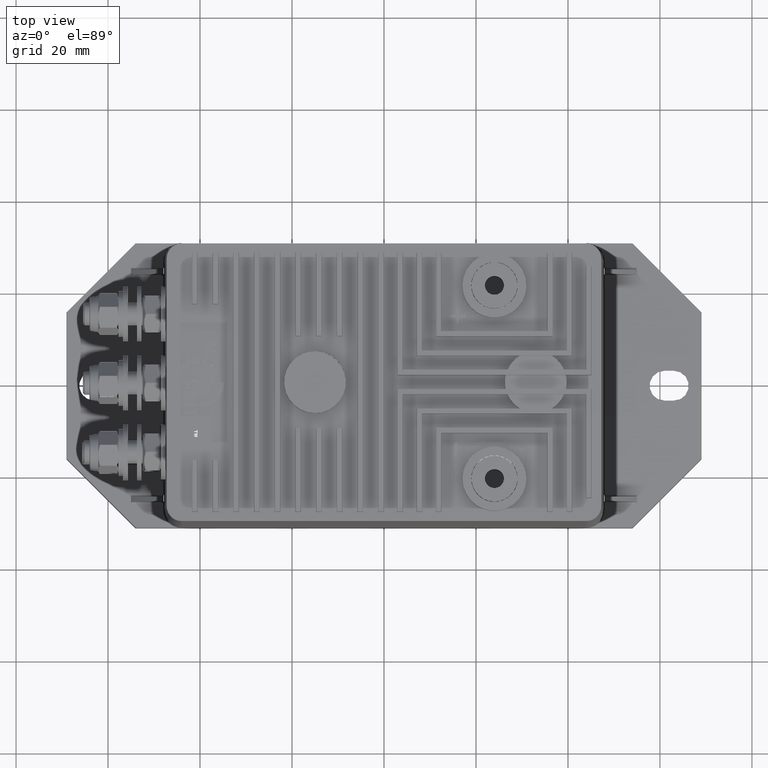
[diagram: clean part render]
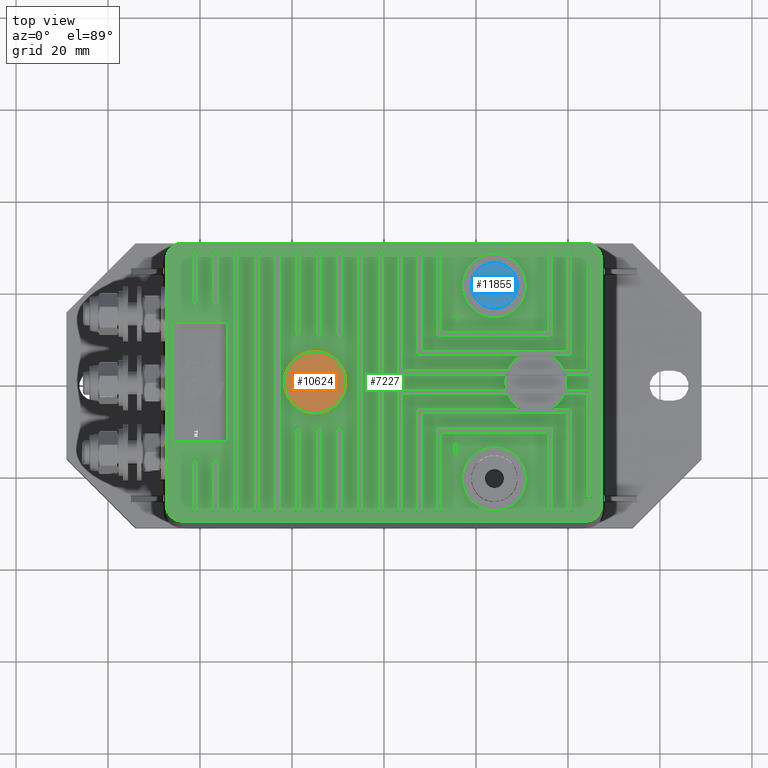
[diagram: same view with three faces highlighted in distinct colors, each labeled with its STEP entity id]
A machine part, top view with three faces highlighted in distinct colors.
Their STEP definitions:

[orange] entity #10624 — the highlighted planar face has unit normal (0, 0, -1).
#2947=CARTESIAN_POINT('',(-19.231977143158463,5.224948796246077,48.000000000000007));
#2948=VERTEX_POINT('',#2947);
#2949=CARTESIAN_POINT('',(-15.0,-7.775031E-014,48.000000000000007));
#2950=DIRECTION('',(0.0,0.0,-1.0));
#2951=DIRECTION('',(-1.0,0.0,0.0));
#2952=AXIS2_PLACEMENT_3D('',#2949,#2950,#2951);
#2953=CIRCLE('',#2952,6.723817402607674);
#2954=EDGE_CURVE('',#2948,#2948,#2953,.T.);
#10616=CARTESIAN_POINT('',(-15.0,-7.775031E-014,48.000000000000007));
#10617=DIRECTION('',(0.0,0.0,-1.0));
#10618=DIRECTION('',(-1.0,0.0,0.0));
#10619=AXIS2_PLACEMENT_3D('',#10616,#10617,#10618);
#10620=PLANE('',#10619);
#10621=ORIENTED_EDGE('',*,*,#2954,.F.);
#10622=EDGE_LOOP('',(#10621));
#10623=FACE_OUTER_BOUND('',#10622,.T.);
#10624=ADVANCED_FACE('',(#10623),#10620,.F.);

[blue] entity #11855 — the highlighted planar face has unit normal (0, 0, 1).
#11763=CARTESIAN_POINT('',(24.000000000000107,16.000000000000529,49.008727532463567));
#11764=VERTEX_POINT('',#11763);
#11765=CARTESIAN_POINT('',(24.000000000000078,21.000000000000529,49.008727532463567));
#11766=DIRECTION('',(0.0,0.0,1.0));
#11767=DIRECTION('',(0.0,-1.0,0.0));
#11768=AXIS2_PLACEMENT_3D('',#11765,#11766,#11767);
#11769=CIRCLE('',#11768,5.0);
#11770=EDGE_CURVE('',#11764,#11764,#11769,.T.);
#11832=CARTESIAN_POINT('',(26.067000000000078,21.00000000000054,49.008727532463553));
#11833=VERTEX_POINT('',#11832);
#11834=CARTESIAN_POINT('',(24.000000000000078,21.000000000000529,49.008727532463567));
#11835=DIRECTION('',(0.0,0.0,-1.0));
#11836=DIRECTION('',(1.0,0.0,0.0));
#11837=AXIS2_PLACEMENT_3D('',#11834,#11835,#11836);
#11838=CIRCLE('',#11837,2.067);
#11839=EDGE_CURVE('',#11833,#11833,#11838,.T.);
#11844=CARTESIAN_POINT('',(24.000000000000092,18.500000000000529,49.008727532463567));
#11845=DIRECTION('',(0.0,0.0,1.0));
#11846=DIRECTION('',(0.0,-1.0,0.0));
#11847=AXIS2_PLACEMENT_3D('',#11844,#11845,#11846);
#11848=PLANE('',#11847);
#11849=ORIENTED_EDGE('',*,*,#11770,.T.);
#11850=EDGE_LOOP('',(#11849));
#11851=FACE_OUTER_BOUND('',#11850,.T.);
#11852=ORIENTED_EDGE('',*,*,#11839,.T.);
#11853=EDGE_LOOP('',(#11852));
#11854=FACE_BOUND('',#11853,.T.);
#11855=ADVANCED_FACE('',(#11851,#11854),#11848,.T.);

[green] entity #7227 — the highlighted planar face has unit normal (0, 0, 1).
#2936=CARTESIAN_POINT('',(-8.25,-4.193606E-014,46.5));
#2937=VERTEX_POINT('',#2936);
#2938=CARTESIAN_POINT('',(-15.0,-7.775031E-014,46.5));
#2939=DIRECTION('',(0.0,0.0,-1.0));
#2940=DIRECTION('',(-1.0,0.0,0.0));
#2941=AXIS2_PLACEMENT_3D('',#2938,#2939,#2940);
#2942=CIRCLE('',#2941,6.75);
#2943=EDGE_CURVE('',#2937,#2937,#2942,.T.);
#2964=CARTESIAN_POINT('',(-13.558159740550707,-10.000000000000069,46.5));
#2965=VERTEX_POINT('',#2964);
#2974=CARTESIAN_POINT('',(-14.758159740550704,-10.000000000000075,46.5));
#2975=VERTEX_POINT('',#2974);
#2976=CARTESIAN_POINT('',(-13.558159740550705,-10.000000000000069,46.5));
#2977=DIRECTION('',(-1.0,0.0,0.0));
#2978=VECTOR('',#2977,1.199999999999999);
#2979=LINE('',#2976,#2978);
#2980=EDGE_CURVE('',#2965,#2975,#2979,.T.);
#3004=CARTESIAN_POINT('',(-18.058159740550707,-10.000000000000092,46.5));
#3005=VERTEX_POINT('',#3004);
#3014=CARTESIAN_POINT('',(-19.258159740550706,-10.000000000000098,46.5));
#3015=VERTEX_POINT('',#3014);
#3016=CARTESIAN_POINT('',(-18.058159740550707,-10.000000000000092,46.5));
#3017=DIRECTION('',(-1.0,0.0,0.0));
#3018=VECTOR('',#3017,1.199999999999999);
#3019=LINE('',#3016,#3018);
#3020=EDGE_CURVE('',#3005,#3015,#3019,.T.);
#3044=CARTESIAN_POINT('',(-9.058159740550707,-10.000000000000046,46.5));
#3045=VERTEX_POINT('',#3044);
#3054=CARTESIAN_POINT('',(-10.258159740550708,-10.000000000000053,46.5));
#3055=VERTEX_POINT('',#3054);
#3056=CARTESIAN_POINT('',(-9.058159740550709,-10.000000000000046,46.5));
#3057=DIRECTION('',(-1.0,0.0,0.0));
#3058=VECTOR('',#3057,1.199999999999998);
#3059=LINE('',#3056,#3058);
#3060=EDGE_CURVE('',#3045,#3055,#3059,.T.);
#3086=CARTESIAN_POINT('',(-18.05815974055081,9.999999999999906,46.5));
#3087=VERTEX_POINT('',#3086);
#3102=CARTESIAN_POINT('',(-19.258159740550813,9.999999999999897,46.5));
#3103=VERTEX_POINT('',#3102);
#3110=CARTESIAN_POINT('',(-19.258159740550813,9.999999999999899,46.5));
#3111=DIRECTION('',(1.0,0.0,0.0));
#3112=VECTOR('',#3111,1.200000000000003);
#3113=LINE('',#3110,#3112);
#3114=EDGE_CURVE('',#3103,#3087,#3113,.T.);
#3126=CARTESIAN_POINT('',(-13.558159740550808,9.999999999999929,46.5));
#3127=VERTEX_POINT('',#3126);
#3142=CARTESIAN_POINT('',(-14.758159740550811,9.999999999999922,46.5));
#3143=VERTEX_POINT('',#3142);
#3150=CARTESIAN_POINT('',(-14.758159740550813,9.999999999999922,46.5));
#3151=DIRECTION('',(1.0,0.0,0.0));
#3152=VECTOR('',#3151,1.200000000000005);
#3153=LINE('',#3150,#3152);
#3154=EDGE_CURVE('',#3143,#3127,#3153,.T.);
#3166=CARTESIAN_POINT('',(-9.058159740550812,9.999999999999954,46.5));
#3167=VERTEX_POINT('',#3166);
#3182=CARTESIAN_POINT('',(-10.258159740550814,9.999999999999947,46.5));
#3183=VERTEX_POINT('',#3182);
#3190=CARTESIAN_POINT('',(-10.258159740550814,9.999999999999947,46.5));
#3191=DIRECTION('',(1.0,0.0,0.0));
#3192=VECTOR('',#3191,1.200000000000003);
#3193=LINE('',#3190,#3192);
#3194=EDGE_CURVE('',#3183,#3167,#3193,.T.);
#3205=CARTESIAN_POINT('',(-9.058159740550906,28.188339480837815,46.5));
#3206=VERTEX_POINT('',#3205);
#3207=CARTESIAN_POINT('',(-9.058159740550908,28.188339480837815,46.5));
#3208=DIRECTION('',(0.0,-1.0,0.0));
#3209=VECTOR('',#3208,18.188339480837861);
#3210=LINE('',#3207,#3209);
#3211=EDGE_CURVE('',#3206,#3167,#3210,.T.);
#3292=CARTESIAN_POINT('',(-10.258159740550916,28.188339480837811,46.5));
#3293=VERTEX_POINT('',#3292);
#3300=CARTESIAN_POINT('',(-10.258159740550814,9.999999999999947,46.5));
#3301=DIRECTION('',(0.0,1.0,0.0));
#3302=VECTOR('',#3301,18.188339480837872);
#3303=LINE('',#3300,#3302);
#3304=EDGE_CURVE('',#3183,#3293,#3303,.T.);
#3315=CARTESIAN_POINT('',(-10.258159740550605,-28.188339480837911,46.5));
#3316=VERTEX_POINT('',#3315);
#3317=CARTESIAN_POINT('',(-10.258159740550603,-28.188339480837911,46.5));
#3318=DIRECTION('',(0.0,1.0,0.0));
#3319=VECTOR('',#3318,18.188339480837858);
#3320=LINE('',#3317,#3319);
#3321=EDGE_CURVE('',#3316,#3055,#3320,.T.);
#3339=CARTESIAN_POINT('',(-13.558159740550904,28.18833948083779,46.5));
#3340=VERTEX_POINT('',#3339);
#3341=CARTESIAN_POINT('',(-13.558159740550904,28.18833948083779,46.5));
#3342=DIRECTION('',(0.0,-1.0,0.0));
#3343=VECTOR('',#3342,18.188339480837861);
#3344=LINE('',#3341,#3343);
#3345=EDGE_CURVE('',#3340,#3127,#3344,.T.);
#3378=CARTESIAN_POINT('',(-13.558159740550611,-28.188339480837929,46.5));
#3379=VERTEX_POINT('',#3378);
#3386=CARTESIAN_POINT('',(-13.558159740550707,-10.000000000000071,46.5));
#3387=DIRECTION('',(0.0,-1.0,0.0));
#3388=VECTOR('',#3387,18.188339480837858);
#3389=LINE('',#3386,#3388);
#3390=EDGE_CURVE('',#2965,#3379,#3389,.T.);
#3450=CARTESIAN_POINT('',(-14.758159740550914,28.188339480837787,46.5));
#3451=VERTEX_POINT('',#3450);
#3458=CARTESIAN_POINT('',(-14.758159740550814,9.999999999999924,46.5));
#3459=DIRECTION('',(0.0,1.0,0.0));
#3460=VECTOR('',#3459,18.188339480837875);
#3461=LINE('',#3458,#3460);
#3462=EDGE_CURVE('',#3143,#3451,#3461,.T.);
#3473=CARTESIAN_POINT('',(-14.758159740550603,-28.188339480837932,46.5));
#3474=VERTEX_POINT('',#3473);
#3475=CARTESIAN_POINT('',(-14.758159740550603,-28.188339480837932,46.5));
#3476=DIRECTION('',(0.0,1.0,0.0));
#3477=VECTOR('',#3476,18.188339480837858);
#3478=LINE('',#3475,#3477);
#3479=EDGE_CURVE('',#3474,#2975,#3478,.T.);
#3497=CARTESIAN_POINT('',(-18.058159740550906,28.188339480837769,46.5));
#3498=VERTEX_POINT('',#3497);
#3499=CARTESIAN_POINT('',(-18.058159740550906,28.188339480837769,46.5));
#3500=DIRECTION('',(0.0,-1.0,0.0));
#3501=VECTOR('',#3500,18.188339480837861);
#3502=LINE('',#3499,#3501);
#3503=EDGE_CURVE('',#3498,#3087,#3502,.T.);
#3536=CARTESIAN_POINT('',(-18.058159740550611,-28.188339480837953,46.5));
#3537=VERTEX_POINT('',#3536);
#3544=CARTESIAN_POINT('',(-18.058159740550707,-10.000000000000092,46.5));
#3545=DIRECTION('',(0.0,-1.0,0.0));
#3546=VECTOR('',#3545,18.188339480837858);
#3547=LINE('',#3544,#3546);
#3548=EDGE_CURVE('',#3005,#3537,#3547,.T.);
#3608=CARTESIAN_POINT('',(-19.258159740550916,28.188339480837765,46.5));
#3609=VERTEX_POINT('',#3608);
#3616=CARTESIAN_POINT('',(-19.258159740550813,9.999999999999895,46.5));
#3617=DIRECTION('',(0.0,1.0,0.0));
#3618=VECTOR('',#3617,18.188339480837875);
#3619=LINE('',#3616,#3618);
#3620=EDGE_CURVE('',#3103,#3609,#3619,.T.);
#3631=CARTESIAN_POINT('',(-19.258159740550603,-28.188339480837957,46.5));
#3632=VERTEX_POINT('',#3631);
#3633=CARTESIAN_POINT('',(-19.258159740550603,-28.188339480837961,46.5));
#3634=DIRECTION('',(0.0,1.0,0.0));
#3635=VECTOR('',#3634,18.188339480837861);
#3636=LINE('',#3633,#3635);
#3637=EDGE_CURVE('',#3632,#3015,#3636,.T.);
#3656=CARTESIAN_POINT('',(-36.058159740550842,16.956362337679273,46.5));
#3657=VERTEX_POINT('',#3656);
#3672=CARTESIAN_POINT('',(-37.258159740550852,16.956362337679266,46.5));
#3673=VERTEX_POINT('',#3672);
#3680=CARTESIAN_POINT('',(-37.258159740550852,16.95636233767927,46.5));
#3681=DIRECTION('',(1.0,0.0,0.0));
#3682=VECTOR('',#3681,1.20000000000001);
#3683=LINE('',#3680,#3682);
#3684=EDGE_CURVE('',#3673,#3657,#3683,.T.);
#3694=CARTESIAN_POINT('',(-41.758159740550845,16.956362337679245,46.5));
#3695=VERTEX_POINT('',#3694);
#3704=CARTESIAN_POINT('',(-40.558159740550849,16.956362337679248,46.5));
#3705=VERTEX_POINT('',#3704);
#3706=CARTESIAN_POINT('',(-41.758159740550845,16.956362337679245,46.5));
#3707=DIRECTION('',(1.0,0.0,0.0));
#3708=VECTOR('',#3707,1.199999999999996);
#3709=LINE('',#3706,#3708);
#3710=EDGE_CURVE('',#3695,#3705,#3709,.T.);
#3734=CARTESIAN_POINT('',(-36.058159740550664,-16.956362337679646,46.5));
#3735=VERTEX_POINT('',#3734);
#3744=CARTESIAN_POINT('',(-37.25815974055066,-16.95636233767965,46.5));
#3745=VERTEX_POINT('',#3744);
#3746=CARTESIAN_POINT('',(-36.058159740550664,-16.956362337679646,46.5));
#3747=DIRECTION('',(-1.0,0.0,0.0));
#3748=VECTOR('',#3747,1.199999999999996);
#3749=LINE('',#3746,#3748);
#3750=EDGE_CURVE('',#3735,#3745,#3749,.T.);
#3776=CARTESIAN_POINT('',(-41.75815974055066,-16.956362337679675,46.5));
#3777=VERTEX_POINT('',#3776);
#3792=CARTESIAN_POINT('',(-40.558159740550664,-16.956362337679671,46.5));
#3793=VERTEX_POINT('',#3792);
#3800=CARTESIAN_POINT('',(-40.558159740550664,-16.956362337679671,46.5));
#3801=DIRECTION('',(-1.0,0.0,0.0));
#3802=VECTOR('',#3801,1.199999999999996);
#3803=LINE('',#3800,#3802);
#3804=EDGE_CURVE('',#3793,#3777,#3803,.T.);
#3815=CARTESIAN_POINT('',(-41.75815974055061,-28.188339480838071,46.5));
#3816=VERTEX_POINT('',#3815);
#3817=CARTESIAN_POINT('',(-41.758159740550603,-28.188339480838067,46.5));
#3818=DIRECTION('',(0.0,1.0,0.0));
#3819=VECTOR('',#3818,11.231977143158392);
#3820=LINE('',#3817,#3819);
#3821=EDGE_CURVE('',#3816,#3777,#3820,.T.);
#3854=CARTESIAN_POINT('',(-41.758159740550909,28.188339480837648,46.5));
#3855=VERTEX_POINT('',#3854);
#3862=CARTESIAN_POINT('',(-41.758159740550852,16.956362337679245,46.5));
#3863=DIRECTION('',(0.0,1.0,0.0));
#3864=VECTOR('',#3863,11.23197714315841);
#3865=LINE('',#3862,#3864);
#3866=EDGE_CURVE('',#3695,#3855,#3865,.T.);
#3885=CARTESIAN_POINT('',(-36.058159740550607,-28.188339480838039,46.5));
#3886=VERTEX_POINT('',#3885);
#3893=CARTESIAN_POINT('',(-36.058159740550664,-16.956362337679643,46.5));
#3894=DIRECTION('',(0.0,-1.0,0.0));
#3895=VECTOR('',#3894,11.231977143158396);
#3896=LINE('',#3893,#3895);
#3897=EDGE_CURVE('',#3735,#3886,#3896,.T.);
#3981=CARTESIAN_POINT('',(-40.558159740550614,-28.188339480838064,46.5));
#3982=VERTEX_POINT('',#3981);
#3989=CARTESIAN_POINT('',(-40.558159740550664,-16.956362337679671,46.5));
#3990=DIRECTION('',(0.0,-1.0,0.0));
#3991=VECTOR('',#3990,11.231977143158396);
#3992=LINE('',#3989,#3991);
#3993=EDGE_CURVE('',#3793,#3982,#3992,.T.);
#4004=CARTESIAN_POINT('',(-40.558159740550899,28.188339480837659,46.5));
#4005=VERTEX_POINT('',#4004);
#4006=CARTESIAN_POINT('',(-40.558159740550899,28.188339480837655,46.5));
#4007=DIRECTION('',(0.0,-1.0,0.0));
#4008=VECTOR('',#4007,11.231977143158407);
#4009=LINE('',#4006,#4008);
#4010=EDGE_CURVE('',#4005,#3705,#4009,.T.);
#4028=CARTESIAN_POINT('',(-37.258159740550603,-28.188339480838046,46.5));
#4029=VERTEX_POINT('',#4028);
#4030=CARTESIAN_POINT('',(-37.258159740550603,-28.188339480838046,46.5));
#4031=DIRECTION('',(0.0,1.0,0.0));
#4032=VECTOR('',#4031,11.231977143158396);
#4033=LINE('',#4030,#4032);
#4034=EDGE_CURVE('',#4029,#3745,#4033,.T.);
#4160=CARTESIAN_POINT('',(47.25815974055061,26.930179740287343,46.5));
#4161=VERTEX_POINT('',#4160);
#4168=CARTESIAN_POINT('',(47.258159740550894,-26.930179740286853,46.5));
#4169=VERTEX_POINT('',#4168);
#4170=CARTESIAN_POINT('',(47.258159740550617,26.930179740287343,46.5));
#4171=DIRECTION('',(0.0,-1.0,0.0));
#4172=VECTOR('',#4171,53.860359480574196);
#4173=LINE('',#4170,#4172);
#4174=EDGE_CURVE('',#4161,#4169,#4173,.T.);
#4719=CARTESIAN_POINT('',(-47.25815974055061,-26.930179740287343,46.5));
#4720=VERTEX_POINT('',#4719);
#4727=CARTESIAN_POINT('',(-47.258159740550909,26.930179740286853,46.5));
#4728=VERTEX_POINT('',#4727);
#4729=CARTESIAN_POINT('',(-47.258159740550617,-26.930179740287343,46.5));
#4730=DIRECTION('',(0.0,1.0,0.0));
#4731=VECTOR('',#4730,53.860359480574196);
#4732=LINE('',#4729,#4731);
#4733=EDGE_CURVE('',#4720,#4728,#4732,.T.);
#5408=CARTESIAN_POINT('',(29.38440876204179,5.70000000000015,46.5));
#5409=VERTEX_POINT('',#5408);
#5424=CARTESIAN_POINT('',(36.615591237958164,5.700000000000189,46.5));
#5425=VERTEX_POINT('',#5424);
#5432=CARTESIAN_POINT('',(40.901797402871253,5.700000000000211,46.5));
#5433=VERTEX_POINT('',#5432);
#5434=CARTESIAN_POINT('',(40.901797402871246,5.70000000000021,46.5));
#5435=DIRECTION('',(-1.0,0.0,0.0));
#5436=VECTOR('',#5435,4.286206164913082);
#5437=LINE('',#5434,#5436);
#5438=EDGE_CURVE('',#5433,#5425,#5437,.T.);
#5456=CARTESIAN_POINT('',(7.098202597128662,5.700000000000039,46.5));
#5457=VERTEX_POINT('',#5456);
#5464=CARTESIAN_POINT('',(29.38440876204179,5.700000000000152,46.5));
#5465=DIRECTION('',(-1.0,0.0,0.0));
#5466=VECTOR('',#5465,22.286206164913128);
#5467=LINE('',#5464,#5466);
#5468=EDGE_CURVE('',#5409,#5457,#5467,.T.);
#5487=CARTESIAN_POINT('',(40.901797402871132,28.188339480838071,46.5));
#5488=VERTEX_POINT('',#5487);
#5489=CARTESIAN_POINT('',(40.901797402871132,28.188339480838067,46.5));
#5490=DIRECTION('',(0.0,-1.0,0.0));
#5491=VECTOR('',#5490,22.488339480837858);
#5492=LINE('',#5489,#5491);
#5493=EDGE_CURVE('',#5488,#5433,#5492,.T.);
#5518=CARTESIAN_POINT('',(39.701797402871136,28.188339480838067,46.5));
#5519=VERTEX_POINT('',#5518);
#5520=CARTESIAN_POINT('',(39.701797402871136,28.188339480838064,46.5));
#5521=DIRECTION('',(1.0,0.0,0.0));
#5522=VECTOR('',#5521,1.199999999999989);
#5523=LINE('',#5520,#5522);
#5524=EDGE_CURVE('',#5519,#5488,#5523,.T.);
#5549=CARTESIAN_POINT('',(39.70179740287125,6.9000000000002,46.5));
#5550=VERTEX_POINT('',#5549);
#5551=CARTESIAN_POINT('',(39.70179740287125,6.900000000000201,46.5));
#5552=DIRECTION('',(0.0,1.0,0.0));
#5553=VECTOR('',#5552,21.288339480837866);
#5554=LINE('',#5551,#5553);
#5555=EDGE_CURVE('',#5550,#5519,#5554,.T.);
#5580=CARTESIAN_POINT('',(8.298202597128658,6.900000000000039,46.5));
#5581=VERTEX_POINT('',#5580);
#5582=CARTESIAN_POINT('',(8.298202597128656,6.90000000000004,46.5));
#5583=DIRECTION('',(1.0,0.0,0.0));
#5584=VECTOR('',#5583,31.403594805742593);
#5585=LINE('',#5582,#5584);
#5586=EDGE_CURVE('',#5581,#5550,#5585,.T.);
#5611=CARTESIAN_POINT('',(8.298202597128553,28.188339480837907,46.5));
#5612=VERTEX_POINT('',#5611);
#5613=CARTESIAN_POINT('',(8.298202597128553,28.188339480837904,46.5));
#5614=DIRECTION('',(0.0,-1.0,0.0));
#5615=VECTOR('',#5614,21.288339480837866);
#5616=LINE('',#5613,#5615);
#5617=EDGE_CURVE('',#5612,#5581,#5616,.T.);
#5642=CARTESIAN_POINT('',(7.098202597128553,28.188339480837897,46.5));
#5643=VERTEX_POINT('',#5642);
#5644=CARTESIAN_POINT('',(7.098202597128553,28.188339480837897,46.5));
#5645=DIRECTION('',(1.0,0.0,0.0));
#5646=VECTOR('',#5645,1.199999999999999);
#5647=LINE('',#5644,#5646);
#5648=EDGE_CURVE('',#5643,#5612,#5647,.T.);
#5671=CARTESIAN_POINT('',(7.098202597128662,5.700000000000042,46.5));
#5672=DIRECTION('',(0.0,1.0,0.0));
#5673=VECTOR('',#5672,22.488339480837858);
#5674=LINE('',#5671,#5673);
#5675=EDGE_CURVE('',#5457,#5643,#5674,.T.);
#5704=CARTESIAN_POINT('',(26.418776709455905,1.500000000000138,46.5));
#5705=VERTEX_POINT('',#5704);
#5720=CARTESIAN_POINT('',(39.581223290544088,1.500000000000206,46.5));
#5721=VERTEX_POINT('',#5720);
#5728=CARTESIAN_POINT('',(45.101797402871256,1.500000000000231,46.5));
#5729=VERTEX_POINT('',#5728);
#5730=CARTESIAN_POINT('',(45.101797402871256,1.500000000000231,46.5));
#5731=DIRECTION('',(-1.0,0.0,0.0));
#5732=VECTOR('',#5731,5.520574112327168);
#5733=LINE('',#5730,#5732);
#5734=EDGE_CURVE('',#5729,#5721,#5733,.T.);
#5752=CARTESIAN_POINT('',(2.898202597128679,1.500000000000018,46.5));
#5753=VERTEX_POINT('',#5752);
#5760=CARTESIAN_POINT('',(26.418776709455909,1.500000000000175,46.5));
#5761=DIRECTION('',(-1.0,0.0,0.0));
#5762=VECTOR('',#5761,23.520574112327228);
#5763=LINE('',#5760,#5762);
#5764=EDGE_CURVE('',#5705,#5753,#5763,.T.);
#5783=CARTESIAN_POINT('',(45.101797402871135,25.188339480838103,46.5));
#5784=VERTEX_POINT('',#5783);
#5785=CARTESIAN_POINT('',(45.101797402871149,25.188339480838106,46.5));
#5786=DIRECTION('',(0.0,-1.0,0.0));
#5787=VECTOR('',#5786,23.688339480837875);
#5788=LINE('',#5785,#5787);
#5789=EDGE_CURVE('',#5784,#5729,#5788,.T.);
#5814=CARTESIAN_POINT('',(43.901797402871139,25.188339480838096,46.5));
#5815=VERTEX_POINT('',#5814);
#5816=CARTESIAN_POINT('',(43.901797402871139,25.188339480838099,46.5));
#5817=DIRECTION('',(1.0,0.0,0.0));
#5818=VECTOR('',#5817,1.200000000000003);
#5819=LINE('',#5816,#5818);
#5820=EDGE_CURVE('',#5815,#5784,#5819,.T.);
#5845=CARTESIAN_POINT('',(43.901797402871253,2.700000000000226,46.5));
#5846=VERTEX_POINT('',#5845);
#5847=CARTESIAN_POINT('',(43.90179740287126,2.700000000000225,46.5));
#5848=DIRECTION('',(0.0,1.0,0.0));
#5849=VECTOR('',#5848,22.488339480837872);
#5850=LINE('',#5847,#5849);
#5851=EDGE_CURVE('',#5846,#5815,#5850,.T.);
#5867=CARTESIAN_POINT('',(26.813522811809612,2.700000000000138,46.5));
#5868=VERTEX_POINT('',#5867);
#5884=CARTESIAN_POINT('',(4.098202597128677,2.700000000000023,46.5));
#5885=VERTEX_POINT('',#5884);
#5886=CARTESIAN_POINT('',(4.098202597128676,2.700000000000024,46.5));
#5887=DIRECTION('',(1.0,0.0,0.0));
#5888=VECTOR('',#5887,22.715320214680936);
#5889=LINE('',#5886,#5888);
#5890=EDGE_CURVE('',#5885,#5868,#5889,.T.);
#5907=CARTESIAN_POINT('',(39.186477188190374,2.700000000000202,46.5));
#5908=VERTEX_POINT('',#5907);
#5909=CARTESIAN_POINT('',(39.186477188190381,2.700000000000202,46.5));
#5910=DIRECTION('',(1.0,0.0,0.0));
#5911=VECTOR('',#5910,4.71532021468088);
#5912=LINE('',#5909,#5911);
#5913=EDGE_CURVE('',#5908,#5846,#5912,.T.);
#5946=CARTESIAN_POINT('',(4.098202597128552,28.188339480837886,46.5));
#5947=VERTEX_POINT('',#5946);
#5948=CARTESIAN_POINT('',(4.098202597128552,28.188339480837882,46.5));
#5949=DIRECTION('',(0.0,-1.0,0.0));
#5950=VECTOR('',#5949,25.488339480837858);
#5951=LINE('',#5948,#5950);
#5952=EDGE_CURVE('',#5947,#5885,#5951,.T.);
#5977=CARTESIAN_POINT('',(2.898202597128552,28.188339480837875,46.5));
#5978=VERTEX_POINT('',#5977);
#5979=CARTESIAN_POINT('',(2.898202597128551,28.188339480837872,46.5));
#5980=DIRECTION('',(1.0,0.0,0.0));
#5981=VECTOR('',#5980,1.2);
#5982=LINE('',#5979,#5981);
#5983=EDGE_CURVE('',#5978,#5947,#5982,.T.);
#6006=CARTESIAN_POINT('',(2.898202597128679,1.50000000000002,46.5));
#6007=DIRECTION('',(0.0,1.0,0.0));
#6008=VECTOR('',#6007,26.688339480837854);
#6009=LINE('',#6006,#6008);
#6010=EDGE_CURVE('',#5753,#5978,#6009,.T.);
#6110=CARTESIAN_POINT('',(11.298202597128553,28.188339480837922,46.5));
#6111=VERTEX_POINT('',#6110);
#6118=CARTESIAN_POINT('',(11.298202597128643,9.900000000000055,46.5));
#6119=VERTEX_POINT('',#6118);
#6120=CARTESIAN_POINT('',(11.298202597128643,9.900000000000055,46.5));
#6121=DIRECTION('',(0.0,1.0,0.0));
#6122=VECTOR('',#6121,18.288339480837866);
#6123=LINE('',#6120,#6122);
#6124=EDGE_CURVE('',#6119,#6111,#6123,.T.);
#6141=CARTESIAN_POINT('',(12.498202597128554,28.188339480837929,46.5));
#6142=VERTEX_POINT('',#6141);
#6149=CARTESIAN_POINT('',(11.298202597128553,28.188339480837914,46.5));
#6150=DIRECTION('',(1.0,0.0,0.0));
#6151=VECTOR('',#6150,1.200000000000001);
#6152=LINE('',#6149,#6151);
#6153=EDGE_CURVE('',#6111,#6142,#6152,.T.);
#6165=CARTESIAN_POINT('',(12.498202597128639,11.100000000000064,46.5));
#6166=VERTEX_POINT('',#6165);
#6173=CARTESIAN_POINT('',(12.498202597128556,28.188339480837925,46.5));
#6174=DIRECTION('',(0.0,-1.0,0.0));
#6175=VECTOR('',#6174,17.08833948083786);
#6176=LINE('',#6173,#6175);
#6177=EDGE_CURVE('',#6142,#6166,#6176,.T.);
#6189=CARTESIAN_POINT('',(35.501797402871226,11.100000000000183,46.5));
#6190=VERTEX_POINT('',#6189);
#6197=CARTESIAN_POINT('',(12.498202597128639,11.100000000000064,46.5));
#6198=DIRECTION('',(1.0,0.0,0.0));
#6199=VECTOR('',#6198,23.003594805742587);
#6200=LINE('',#6197,#6199);
#6201=EDGE_CURVE('',#6166,#6190,#6200,.T.);
#6213=CARTESIAN_POINT('',(35.501797402871134,28.188339480838046,46.5));
#6214=VERTEX_POINT('',#6213);
#6221=CARTESIAN_POINT('',(35.501797402871233,11.100000000000183,46.5));
#6222=DIRECTION('',(0.0,1.0,0.0));
#6223=VECTOR('',#6222,17.088339480837863);
#6224=LINE('',#6221,#6223);
#6225=EDGE_CURVE('',#6190,#6214,#6224,.T.);
#6237=CARTESIAN_POINT('',(36.701797402871136,28.188339480838053,46.5));
#6238=VERTEX_POINT('',#6237);
#6245=CARTESIAN_POINT('',(35.501797402871134,28.188339480838042,46.5));
#6246=DIRECTION('',(1.0,0.0,0.0));
#6247=VECTOR('',#6246,1.200000000000003);
#6248=LINE('',#6245,#6247);
#6249=EDGE_CURVE('',#6214,#6238,#6248,.T.);
#6261=CARTESIAN_POINT('',(36.701797402871236,9.900000000000187,46.5));
#6262=VERTEX_POINT('',#6261);
#6269=CARTESIAN_POINT('',(36.701797402871136,28.188339480838057,46.5));
#6270=DIRECTION('',(0.0,-1.0,0.0));
#6271=VECTOR('',#6270,18.28833948083787);
#6272=LINE('',#6269,#6271);
#6273=EDGE_CURVE('',#6238,#6262,#6272,.T.);
#6286=CARTESIAN_POINT('',(36.701797402871236,9.900000000000187,46.5));
#6287=DIRECTION('',(-1.0,0.0,0.0));
#6288=VECTOR('',#6287,25.403594805742593);
#6289=LINE('',#6286,#6288);
#6290=EDGE_CURVE('',#6262,#6119,#6289,.T.);
#6311=CARTESIAN_POINT('',(39.581223290544109,-1.499999999999804,46.5));
#6312=VERTEX_POINT('',#6311);
#6319=CARTESIAN_POINT('',(33.000000000000007,1.710507E-013,46.5));
#6320=DIRECTION('',(0.0,0.0,-1.0));
#6321=DIRECTION('',(-1.0,0.0,0.0));
#6322=AXIS2_PLACEMENT_3D('',#6319,#6320,#6321);
#6323=CIRCLE('',#6322,6.75);
#6324=EDGE_CURVE('',#5721,#6312,#6323,.T.);
#6335=CARTESIAN_POINT('',(26.418776709455933,-1.499999999999901,46.5));
#6336=VERTEX_POINT('',#6335);
#6337=CARTESIAN_POINT('',(33.000000000000007,1.710507E-013,46.5));
#6338=DIRECTION('',(0.0,0.0,-1.0));
#6339=DIRECTION('',(-1.0,0.0,0.0));
#6340=AXIS2_PLACEMENT_3D('',#6337,#6338,#6339);
#6341=CIRCLE('',#6340,6.75);
#6342=EDGE_CURVE('',#6336,#5705,#6341,.T.);
#6376=CARTESIAN_POINT('',(33.000000000000007,1.710507E-013,46.5));
#6377=DIRECTION('',(0.0,0.0,-1.0));
#6378=DIRECTION('',(-1.0,0.0,0.0));
#6379=AXIS2_PLACEMENT_3D('',#6376,#6377,#6378);
#6380=CIRCLE('',#6379,6.75);
#6381=EDGE_CURVE('',#5425,#5908,#6380,.T.);
#6403=CARTESIAN_POINT('',(5.355966E-016,1.110223E-015,46.5));
#6404=DIRECTION('',(0.0,0.0,1.0));
#6405=DIRECTION('',(1.0,0.0,0.0));
#6406=AXIS2_PLACEMENT_3D('',#6403,#6404,#6405);
#6407=PLANE('',#6406);
#6408=CARTESIAN_POINT('',(44.000000000000171,-30.188339480837641,46.5));
#6409=VERTEX_POINT('',#6408);
#6410=CARTESIAN_POINT('',(-43.999999999999851,-30.188339480838074,46.5));
#6411=VERTEX_POINT('',#6410);
#6412=CARTESIAN_POINT('',(44.000000000000178,-30.188339480837641,46.5));
#6413=DIRECTION('',(-1.0,0.0,0.0));
#6414=VECTOR('',#6413,88.000000000000028);
#6415=LINE('',#6412,#6414);
#6416=EDGE_CURVE('',#6409,#6411,#6415,.T.);
#6417=ORIENTED_EDGE('',*,*,#6416,.F.);
#6418=CARTESIAN_POINT('',(44.000000000000156,-26.930179740286874,46.5));
#6419=DIRECTION('',(0.0,0.0,-1.0));
#6420=DIRECTION('',(0.0,-1.0,0.0));
#6421=AXIS2_PLACEMENT_3D('',#6418,#6419,#6420);
#6422=CIRCLE('',#6421,3.258159740550747);
#6423=EDGE_CURVE('',#4169,#6409,#6422,.T.);
#6424=ORIENTED_EDGE('',*,*,#6423,.F.);
#6425=ORIENTED_EDGE('',*,*,#4174,.F.);
#6426=CARTESIAN_POINT('',(43.999999999999851,30.188339480838078,46.5));
#6427=VERTEX_POINT('',#6426);
#6428=CARTESIAN_POINT('',(43.999999999999872,26.930179740287326,46.5));
#6429=DIRECTION('',(0.0,0.0,-1.0));
#6430=DIRECTION('',(1.0,0.0,0.0));
#6431=AXIS2_PLACEMENT_3D('',#6428,#6429,#6430);
#6432=CIRCLE('',#6431,3.258159740550752);
#6433=EDGE_CURVE('',#6427,#4161,#6432,.T.);
#6434=ORIENTED_EDGE('',*,*,#6433,.F.);
#6435=CARTESIAN_POINT('',(-44.000000000000171,30.188339480837641,46.5));
#6436=VERTEX_POINT('',#6435);
#6437=CARTESIAN_POINT('',(-44.000000000000178,30.188339480837641,46.5));
#6438=DIRECTION('',(1.0,0.0,0.0));
#6439=VECTOR('',#6438,88.000000000000028);
#6440=LINE('',#6437,#6439);
#6441=EDGE_CURVE('',#6436,#6427,#6440,.T.);
#6442=ORIENTED_EDGE('',*,*,#6441,.F.);
#6443=CARTESIAN_POINT('',(-44.000000000000156,26.930179740286874,46.5));
#6444=DIRECTION('',(0.0,0.0,-1.0));
#6445=DIRECTION('',(0.0,1.0,0.0));
#6446=AXIS2_PLACEMENT_3D('',#6443,#6444,#6445);
#6447=CIRCLE('',#6446,3.258159740550753);
#6448=EDGE_CURVE('',#4728,#6436,#6447,.T.);
#6449=ORIENTED_EDGE('',*,*,#6448,.F.);
#6450=ORIENTED_EDGE('',*,*,#4733,.F.);
#6451=CARTESIAN_POINT('',(-43.999999999999872,-26.930179740287326,46.5));
#6452=DIRECTION('',(0.0,0.0,-1.0));
#6453=DIRECTION('',(-1.0,0.0,0.0));
#6454=AXIS2_PLACEMENT_3D('',#6451,#6452,#6453);
#6455=CIRCLE('',#6454,3.258159740550747);
#6456=EDGE_CURVE('',#6411,#4720,#6455,.T.);
#6457=ORIENTED_EDGE('',*,*,#6456,.F.);
#6458=EDGE_LOOP('',(#6417,#6424,#6425,#6434,#6442,#6449,#6450,#6457));
#6459=FACE_OUTER_BOUND('',#6458,.T.);
#6460=ORIENTED_EDGE('',*,*,#2943,.T.);
#6461=EDGE_LOOP('',(#6460));
#6462=FACE_BOUND('',#6461,.T.);
#6463=ORIENTED_EDGE('',*,*,#3194,.F.);
#6464=ORIENTED_EDGE('',*,*,#3304,.T.);
#6465=CARTESIAN_POINT('',(-10.258159740550916,28.188339480837808,46.5));
#6466=DIRECTION('',(1.0,0.0,0.0));
#6467=VECTOR('',#6466,1.20000000000001);
#6468=LINE('',#6465,#6467);
#6469=EDGE_CURVE('',#3293,#3206,#6468,.T.);
#6470=ORIENTED_EDGE('',*,*,#6469,.T.);
#6471=ORIENTED_EDGE('',*,*,#3211,.T.);
#6472=EDGE_LOOP('',(#6463,#6464,#6470,#6471));
#6473=FACE_BOUND('',#6472,.T.);
#6474=ORIENTED_EDGE('',*,*,#3154,.F.);
#6475=ORIENTED_EDGE('',*,*,#3462,.T.);
#6476=CARTESIAN_POINT('',(-14.758159740550912,28.188339480837779,46.5));
#6477=DIRECTION('',(1.0,0.0,0.0));
#6478=VECTOR('',#6477,1.20000000000001);
#6479=LINE('',#6476,#6478);
#6480=EDGE_CURVE('',#3451,#3340,#6479,.T.);
#6481=ORIENTED_EDGE('',*,*,#6480,.T.);
#6482=ORIENTED_EDGE('',*,*,#3345,.T.);
#6483=EDGE_LOOP('',(#6474,#6475,#6481,#6482));
#6484=FACE_BOUND('',#6483,.T.);
#6485=ORIENTED_EDGE('',*,*,#3114,.F.);
#6486=ORIENTED_EDGE('',*,*,#3620,.T.);
#6487=CARTESIAN_POINT('',(-19.258159740550916,28.188339480837762,46.5));
#6488=DIRECTION('',(1.0,0.0,0.0));
#6489=VECTOR('',#6488,1.20000000000001);
#6490=LINE('',#6487,#6489);
#6491=EDGE_CURVE('',#3609,#3498,#6490,.T.);
#6492=ORIENTED_EDGE('',*,*,#6491,.T.);
#6493=ORIENTED_EDGE('',*,*,#3503,.T.);
#6494=EDGE_LOOP('',(#6485,#6486,#6492,#6493));
#6495=FACE_BOUND('',#6494,.T.);
#6496=ORIENTED_EDGE('',*,*,#3020,.F.);
#6497=ORIENTED_EDGE('',*,*,#3548,.T.);
#6498=CARTESIAN_POINT('',(-18.058159740550614,-28.188339480837953,46.5));
#6499=DIRECTION('',(-1.0,0.0,0.0));
#6500=VECTOR('',#6499,1.199999999999989);
#6501=LINE('',#6498,#6500);
#6502=EDGE_CURVE('',#3537,#3632,#6501,.T.);
#6503=ORIENTED_EDGE('',*,*,#6502,.T.);
#6504=ORIENTED_EDGE('',*,*,#3637,.T.);
#6505=EDGE_LOOP('',(#6496,#6497,#6503,#6504));
#6506=FACE_BOUND('',#6505,.T.);
#6507=ORIENTED_EDGE('',*,*,#2980,.F.);
#6508=ORIENTED_EDGE('',*,*,#3390,.T.);
#6509=CARTESIAN_POINT('',(-13.558159740550611,-28.188339480837929,46.5));
#6510=DIRECTION('',(-1.0,0.0,0.0));
#6511=VECTOR('',#6510,1.199999999999992);
#6512=LINE('',#6509,#6511);
#6513=EDGE_CURVE('',#3379,#3474,#6512,.T.);
#6514=ORIENTED_EDGE('',*,*,#6513,.T.);
#6515=ORIENTED_EDGE('',*,*,#3479,.T.);
#6516=EDGE_LOOP('',(#6507,#6508,#6514,#6515));
#6517=FACE_BOUND('',#6516,.T.);
#6518=ORIENTED_EDGE('',*,*,#3060,.F.);
#6519=CARTESIAN_POINT('',(-9.058159740550613,-28.188339480837907,46.5));
#6520=VERTEX_POINT('',#6519);
#6521=CARTESIAN_POINT('',(-9.05815974055071,-10.000000000000046,46.5));
#6522=DIRECTION('',(0.0,-1.0,0.0));
#6523=VECTOR('',#6522,18.188339480837858);
#6524=LINE('',#6521,#6523);
#6525=EDGE_CURVE('',#3045,#6520,#6524,.T.);
#6526=ORIENTED_EDGE('',*,*,#6525,.T.);
#6527=CARTESIAN_POINT('',(-9.058159740550615,-28.188339480837907,46.5));
#6528=DIRECTION('',(-1.0,0.0,0.0));
#6529=VECTOR('',#6528,1.199999999999992);
#6530=LINE('',#6527,#6529);
#6531=EDGE_CURVE('',#6520,#3316,#6530,.T.);
#6532=ORIENTED_EDGE('',*,*,#6531,.T.);
#6533=ORIENTED_EDGE('',*,*,#3321,.T.);
#6534=EDGE_LOOP('',(#6518,#6526,#6532,#6533));
#6535=FACE_BOUND('',#6534,.T.);
#6536=CARTESIAN_POINT('',(-45.999999999999929,-13.000000000000238,46.5));
#6537=VERTEX_POINT('',#6536);
#6538=CARTESIAN_POINT('',(-46.000000000000071,12.999999999999762,46.5));
#6539=VERTEX_POINT('',#6538);
#6540=CARTESIAN_POINT('',(-45.999999999999929,-13.000000000000238,46.5));
#6541=DIRECTION('',(0.0,1.0,0.0));
#6542=VECTOR('',#6541,26.0);
#6543=LINE('',#6540,#6542);
#6544=EDGE_CURVE('',#6537,#6539,#6543,.T.);
#6545=ORIENTED_EDGE('',*,*,#6544,.T.);
#6546=CARTESIAN_POINT('',(-34.000000000000064,12.999999999999822,46.5));
#6547=VERTEX_POINT('',#6546);
#6548=CARTESIAN_POINT('',(-46.000000000000064,12.999999999999758,46.5));
#6549=DIRECTION('',(1.0,0.0,0.0));
#6550=VECTOR('',#6549,12.000000000000007);
#6551=LINE('',#6548,#6550);
#6552=EDGE_CURVE('',#6539,#6547,#6551,.T.);
#6553=ORIENTED_EDGE('',*,*,#6552,.T.);
#6554=CARTESIAN_POINT('',(-33.999999999999929,-13.000000000000174,46.5));
#6555=VERTEX_POINT('',#6554);
#6556=CARTESIAN_POINT('',(-34.000000000000057,12.999999999999821,46.5));
#6557=DIRECTION('',(0.0,-1.0,0.0));
#6558=VECTOR('',#6557,25.999999999999993);
#6559=LINE('',#6556,#6558);
#6560=EDGE_CURVE('',#6547,#6555,#6559,.T.);
#6561=ORIENTED_EDGE('',*,*,#6560,.T.);
#6562=CARTESIAN_POINT('',(-33.999999999999929,-13.000000000000174,46.5));
#6563=DIRECTION('',(-1.0,0.0,0.0));
#6564=VECTOR('',#6563,12.0);
#6565=LINE('',#6562,#6564);
#6566=EDGE_CURVE('',#6555,#6537,#6565,.T.);
#6567=ORIENTED_EDGE('',*,*,#6566,.T.);
#6568=EDGE_LOOP('',(#6545,#6553,#6561,#6567));
#6569=FACE_BOUND('',#6568,.T.);
#6570=ORIENTED_EDGE('',*,*,#3866,.T.);
#6571=CARTESIAN_POINT('',(-41.758159740550909,28.188339480837655,46.5));
#6572=DIRECTION('',(1.0,0.0,0.0));
#6573=VECTOR('',#6572,1.200000000000003);
#6574=LINE('',#6571,#6573);
#6575=EDGE_CURVE('',#3855,#4005,#6574,.T.);
#6576=ORIENTED_EDGE('',*,*,#6575,.T.);
#6577=ORIENTED_EDGE('',*,*,#4010,.T.);
#6578=ORIENTED_EDGE('',*,*,#3710,.F.);
#6579=EDGE_LOOP('',(#6570,#6576,#6577,#6578));
#6580=FACE_BOUND('',#6579,.T.);
#6581=ORIENTED_EDGE('',*,*,#3897,.T.);
#6582=CARTESIAN_POINT('',(-36.058159740550607,-28.188339480838035,46.5));
#6583=DIRECTION('',(-1.0,0.0,0.0));
#6584=VECTOR('',#6583,1.199999999999996);
#6585=LINE('',#6582,#6584);
#6586=EDGE_CURVE('',#3886,#4029,#6585,.T.);
#6587=ORIENTED_EDGE('',*,*,#6586,.T.);
#6588=ORIENTED_EDGE('',*,*,#4034,.T.);
#6589=ORIENTED_EDGE('',*,*,#3750,.F.);
#6590=EDGE_LOOP('',(#6581,#6587,#6588,#6589));
#6591=FACE_BOUND('',#6590,.T.);
#6592=ORIENTED_EDGE('',*,*,#3804,.F.);
#6593=ORIENTED_EDGE('',*,*,#3993,.T.);
#6594=CARTESIAN_POINT('',(-40.558159740550607,-28.188339480838064,46.5));
#6595=DIRECTION('',(-1.0,0.0,0.0));
#6596=VECTOR('',#6595,1.199999999999996);
#6597=LINE('',#6594,#6596);
#6598=EDGE_CURVE('',#3982,#3816,#6597,.T.);
#6599=ORIENTED_EDGE('',*,*,#6598,.T.);
#6600=ORIENTED_EDGE('',*,*,#3821,.T.);
#6601=EDGE_LOOP('',(#6592,#6593,#6599,#6600));
#6602=FACE_BOUND('',#6601,.T.);
#6603=ORIENTED_EDGE('',*,*,#3684,.F.);
#6604=CARTESIAN_POINT('',(-37.258159740550909,28.188339480837676,46.5));
#6605=VERTEX_POINT('',#6604);
#6606=CARTESIAN_POINT('',(-37.258159740550852,16.956362337679266,46.5));
#6607=DIRECTION('',(0.0,1.0,0.0));
#6608=VECTOR('',#6607,11.23197714315841);
#6609=LINE('',#6606,#6608);
#6610=EDGE_CURVE('',#3673,#6605,#6609,.T.);
#6611=ORIENTED_EDGE('',*,*,#6610,.T.);
#6612=CARTESIAN_POINT('',(-36.058159740550899,28.18833948083768,46.5));
#6613=VERTEX_POINT('',#6612);
#6614=CARTESIAN_POINT('',(-37.258159740550909,28.188339480837673,46.5));
#6615=DIRECTION('',(1.0,0.0,0.0));
#6616=VECTOR('',#6615,1.200000000000003);
#6617=LINE('',#6614,#6616);
#6618=EDGE_CURVE('',#6605,#6613,#6617,.T.);
#6619=ORIENTED_EDGE('',*,*,#6618,.T.);
#6620=CARTESIAN_POINT('',(-36.058159740550899,28.188339480837683,46.5));
#6621=DIRECTION('',(0.0,-1.0,0.0));
#6622=VECTOR('',#6621,11.23197714315841);
#6623=LINE('',#6620,#6622);
#6624=EDGE_CURVE('',#6613,#3657,#6623,.T.);
#6625=ORIENTED_EDGE('',*,*,#6624,.T.);
#6626=EDGE_LOOP('',(#6603,#6611,#6619,#6625));
#6627=FACE_BOUND('',#6626,.T.);
#6628=CARTESIAN_POINT('',(15.723041598267445,14.070064094622763,46.5));
#6629=VERTEX_POINT('',#6628);
#6630=CARTESIAN_POINT('',(14.362523305584517,14.070064094622756,46.5));
#6631=VERTEX_POINT('',#6630);
#6632=CARTESIAN_POINT('',(15.723041598267445,14.070064094622762,46.5));
#6633=DIRECTION('',(-1.0,0.0,0.0));
#6634=VECTOR('',#6633,1.360518292682926);
#6635=LINE('',#6632,#6634);
#6636=EDGE_CURVE('',#6629,#6631,#6635,.T.);
#6637=ORIENTED_EDGE('',*,*,#6636,.T.);
#6638=CARTESIAN_POINT('',(14.362523305584515,14.641710436086171,46.5));
#6639=VERTEX_POINT('',#6638);
#6640=CARTESIAN_POINT('',(14.362523305584519,14.070064094622754,46.5));
#6641=DIRECTION('',(0.0,1.0,0.0));
#6642=VECTOR('',#6641,0.571646341463415);
#6643=LINE('',#6640,#6642);
#6644=EDGE_CURVE('',#6631,#6639,#6643,.T.);
#6645=ORIENTED_EDGE('',*,*,#6644,.T.);
#6646=CARTESIAN_POINT('',(15.723041598267443,14.641710436086177,46.5));
#6647=VERTEX_POINT('',#6646);
#6648=CARTESIAN_POINT('',(14.362523305584517,14.64171043608617,46.5));
#6649=DIRECTION('',(1.0,0.0,0.0));
#6650=VECTOR('',#6649,1.360518292682926);
#6651=LINE('',#6648,#6650);
#6652=EDGE_CURVE('',#6639,#6647,#6651,.T.);
#6653=ORIENTED_EDGE('',*,*,#6652,.T.);
#6654=CARTESIAN_POINT('',(15.723041598267436,16.002228728769104,46.5));
#6655=VERTEX_POINT('',#6654);
#6656=CARTESIAN_POINT('',(15.723041598267443,14.641710436086175,46.5));
#6657=DIRECTION('',(0.0,1.0,0.0));
#6658=VECTOR('',#6657,1.360518292682929);
#6659=LINE('',#6656,#6658);
#6660=EDGE_CURVE('',#6647,#6655,#6659,.T.);
#6661=ORIENTED_EDGE('',*,*,#6660,.T.);
#6662=CARTESIAN_POINT('',(16.302309890950365,16.002228728769104,46.5));
#6663=VERTEX_POINT('',#6662);
#6664=CARTESIAN_POINT('',(15.723041598267434,16.002228728769101,46.5));
#6665=DIRECTION('',(1.0,0.0,0.0));
#6666=VECTOR('',#6665,0.579268292682928);
#6667=LINE('',#6664,#6666);
#6668=EDGE_CURVE('',#6655,#6663,#6667,.T.);
#6669=ORIENTED_EDGE('',*,*,#6668,.T.);
#6670=CARTESIAN_POINT('',(16.302309890950369,14.641710436086179,46.5));
#6671=VERTEX_POINT('',#6670);
#6672=CARTESIAN_POINT('',(16.302309890950362,16.002228728769104,46.5));
#6673=DIRECTION('',(0.0,-1.0,0.0));
#6674=VECTOR('',#6673,1.360518292682924);
#6675=LINE('',#6672,#6674);
#6676=EDGE_CURVE('',#6663,#6671,#6675,.T.);
#6677=ORIENTED_EDGE('',*,*,#6676,.T.);
#6678=CARTESIAN_POINT('',(17.662828183633298,14.641710436086186,46.5));
#6679=VERTEX_POINT('',#6678);
#6680=CARTESIAN_POINT('',(16.302309890950369,14.64171043608618,46.5));
#6681=DIRECTION('',(1.0,0.0,0.0));
#6682=VECTOR('',#6681,1.360518292682926);
#6683=LINE('',#6680,#6682);
#6684=EDGE_CURVE('',#6671,#6679,#6683,.T.);
#6685=ORIENTED_EDGE('',*,*,#6684,.T.);
#6686=CARTESIAN_POINT('',(17.662828183633298,14.070064094622772,46.5));
#6687=VERTEX_POINT('',#6686);
#6688=CARTESIAN_POINT('',(17.662828183633295,14.641710436086186,46.5));
#6689=DIRECTION('',(0.0,-1.0,0.0));
#6690=VECTOR('',#6689,0.571646341463413);
#6691=LINE('',#6688,#6690);
#6692=EDGE_CURVE('',#6679,#6687,#6691,.T.);
#6693=ORIENTED_EDGE('',*,*,#6692,.T.);
#6694=CARTESIAN_POINT('',(16.302309890950372,14.070064094622765,46.5));
#6695=VERTEX_POINT('',#6694);
#6696=CARTESIAN_POINT('',(17.662828183633302,14.070064094622774,46.5));
#6697=DIRECTION('',(-1.0,0.0,0.0));
#6698=VECTOR('',#6697,1.360518292682929);
#6699=LINE('',#6696,#6698);
#6700=EDGE_CURVE('',#6687,#6695,#6699,.T.);
#6701=ORIENTED_EDGE('',*,*,#6700,.T.);
#6702=CARTESIAN_POINT('',(16.302309890950379,12.698112875110571,46.5));
#6703=VERTEX_POINT('',#6702);
#6704=CARTESIAN_POINT('',(16.302309890950376,14.070064094622765,46.5));
#6705=DIRECTION('',(0.0,-1.0,0.0));
#6706=VECTOR('',#6705,1.371951219512194);
#6707=LINE('',#6704,#6706);
#6708=EDGE_CURVE('',#6695,#6703,#6707,.T.);
#6709=ORIENTED_EDGE('',*,*,#6708,.T.);
#6710=CARTESIAN_POINT('',(15.72304159826745,12.698112875110567,46.5));
#6711=VERTEX_POINT('',#6710);
#6712=CARTESIAN_POINT('',(16.302309890950383,12.698112875110571,46.5));
#6713=DIRECTION('',(-1.0,0.0,0.0));
#6714=VECTOR('',#6713,0.579268292682931);
#6715=LINE('',#6712,#6714);
#6716=EDGE_CURVE('',#6703,#6711,#6715,.T.);
#6717=ORIENTED_EDGE('',*,*,#6716,.T.);
#6718=CARTESIAN_POINT('',(15.72304159826745,12.698112875110567,46.5));
#6719=DIRECTION('',(0.0,1.0,0.0));
#6720=VECTOR('',#6719,1.371951219512194);
#6721=LINE('',#6718,#6720);
#6722=EDGE_CURVE('',#6711,#6629,#6721,.T.);
#6723=ORIENTED_EDGE('',*,*,#6722,.T.);
#6724=EDGE_LOOP('',(#6637,#6645,#6653,#6661,#6669,#6677,#6685,#6693,#6701,#6709,#6717,#6723));
#6725=FACE_BOUND('',#6724,.T.);
#6726=CARTESIAN_POINT('',(15.168961652966216,-15.823242608227199,46.5));
#6727=VERTEX_POINT('',#6726);
#6728=CARTESIAN_POINT('',(15.168961652966198,-13.176901189879489,46.5));
#6729=VERTEX_POINT('',#6728);
#6730=CARTESIAN_POINT('',(15.168961652966216,-15.823242608227197,46.5));
#6731=DIRECTION('',(0.0,1.0,0.0));
#6732=VECTOR('',#6731,2.64634141834771);
#6733=LINE('',#6730,#6732);
#6734=EDGE_CURVE('',#6727,#6729,#6733,.T.);
#6735=ORIENTED_EDGE('',*,*,#6734,.T.);
#6736=CARTESIAN_POINT('',(16.033290906539442,-13.176901189879484,46.5));
#6737=VERTEX_POINT('',#6736);
#6738=CARTESIAN_POINT('',(15.168961652966198,-13.176901189879487,46.5));
#6739=DIRECTION('',(1.0,0.0,0.0));
#6740=VECTOR('',#6739,0.864329253573244);
#6741=LINE('',#6738,#6740);
#6742=EDGE_CURVE('',#6729,#6737,#6741,.T.);
#6743=ORIENTED_EDGE('',*,*,#6742,.T.);
#6744=CARTESIAN_POINT('',(16.03329090653946,-15.823242608227195,46.5));
#6745=VERTEX_POINT('',#6744);
#6746=CARTESIAN_POINT('',(16.033290906539442,-13.176901189879484,46.5));
#6747=DIRECTION('',(0.0,-1.0,0.0));
#6748=VECTOR('',#6747,2.64634141834771);
#6749=LINE('',#6746,#6748);
#6750=EDGE_CURVE('',#6737,#6745,#6749,.T.);
#6751=ORIENTED_EDGE('',*,*,#6750,.T.);
#6752=CARTESIAN_POINT('',(16.03329090653946,-15.823242608227194,46.5));
#6753=DIRECTION('',(-1.0,0.0,0.0));
#6754=VECTOR('',#6753,0.864329253573244);
#6755=LINE('',#6752,#6754);
#6756=EDGE_CURVE('',#6745,#6727,#6755,.T.);
#6757=ORIENTED_EDGE('',*,*,#6756,.T.);
#6758=EDGE_LOOP('',(#6735,#6743,#6751,#6757));
#6759=FACE_BOUND('',#6758,.T.);
#6760=CARTESIAN_POINT('',(-0.058159740550906,28.188339480837858,46.5));
#6761=VERTEX_POINT('',#6760);
#6762=CARTESIAN_POINT('',(-0.058159740550614,-28.188339480837861,46.5));
#6763=VERTEX_POINT('',#6762);
#6764=CARTESIAN_POINT('',(-0.058159740550906,28.188339480837858,46.5));
#6765=DIRECTION('',(0.0,-1.0,0.0));
#6766=VECTOR('',#6765,56.376678961675722);
#6767=LINE('',#6764,#6766);
#6768=EDGE_CURVE('',#6761,#6763,#6767,.T.);
#6769=ORIENTED_EDGE('',*,*,#6768,.T.);
#6770=CARTESIAN_POINT('',(-1.258159740550606,-28.188339480837868,46.5));
#6771=VERTEX_POINT('',#6770);
#6772=CARTESIAN_POINT('',(-0.058159740550614,-28.188339480837858,46.5));
#6773=DIRECTION('',(-1.0,0.0,0.0));
#6774=VECTOR('',#6773,1.199999999999992);
#6775=LINE('',#6772,#6774);
#6776=EDGE_CURVE('',#6763,#6771,#6775,.T.);
#6777=ORIENTED_EDGE('',*,*,#6776,.T.);
#6778=CARTESIAN_POINT('',(-1.258159740550916,28.188339480837854,46.5));
#6779=VERTEX_POINT('',#6778);
#6780=CARTESIAN_POINT('',(-1.258159740550606,-28.188339480837868,46.5));
#6781=DIRECTION('',(0.0,1.0,0.0));
#6782=VECTOR('',#6781,56.376678961675722);
#6783=LINE('',#6780,#6782);
#6784=EDGE_CURVE('',#6771,#6779,#6783,.T.);
#6785=ORIENTED_EDGE('',*,*,#6784,.T.);
#6786=CARTESIAN_POINT('',(-1.258159740550916,28.18833948083785,46.5));
#6787=DIRECTION('',(1.0,0.0,0.0));
#6788=VECTOR('',#6787,1.20000000000001);
#6789=LINE('',#6786,#6788);
#6790=EDGE_CURVE('',#6779,#6761,#6789,.T.);
#6791=ORIENTED_EDGE('',*,*,#6790,.T.);
#6792=EDGE_LOOP('',(#6769,#6777,#6785,#6791));
#6793=FACE_BOUND('',#6792,.T.);
#6794=CARTESIAN_POINT('',(-4.558159740550903,28.18833948083784,46.5));
#6795=VERTEX_POINT('',#6794);
#6796=CARTESIAN_POINT('',(-4.558159740550611,-28.188339480837882,46.5));
#6797=VERTEX_POINT('',#6796);
#6798=CARTESIAN_POINT('',(-4.558159740550903,28.18833948083784,46.5));
#6799=DIRECTION('',(0.0,-1.0,0.0));
#6800=VECTOR('',#6799,56.376678961675722);
#6801=LINE('',#6798,#6800);
#6802=EDGE_CURVE('',#6795,#6797,#6801,.T.);
#6803=ORIENTED_EDGE('',*,*,#6802,.T.);
#6804=CARTESIAN_POINT('',(-5.758159740550603,-28.18833948083789,46.5));
#6805=VERTEX_POINT('',#6804);
#6806=CARTESIAN_POINT('',(-4.558159740550612,-28.188339480837882,46.5));
#6807=DIRECTION('',(-1.0,0.0,0.0));
#6808=VECTOR('',#6807,1.199999999999993);
#6809=LINE('',#6806,#6808);
#6810=EDGE_CURVE('',#6797,#6805,#6809,.T.);
#6811=ORIENTED_EDGE('',*,*,#6810,.T.);
#6812=CARTESIAN_POINT('',(-5.758159740550914,28.188339480837833,46.5));
#6813=VERTEX_POINT('',#6812);
#6814=CARTESIAN_POINT('',(-5.758159740550605,-28.18833948083789,46.5));
#6815=DIRECTION('',(0.0,1.0,0.0));
#6816=VECTOR('',#6815,56.376678961675722);
#6817=LINE('',#6814,#6816);
#6818=EDGE_CURVE('',#6805,#6813,#6817,.T.);
#6819=ORIENTED_EDGE('',*,*,#6818,.T.);
#6820=CARTESIAN_POINT('',(-5.758159740550914,28.188339480837833,46.5));
#6821=DIRECTION('',(1.0,0.0,0.0));
#6822=VECTOR('',#6821,1.200000000000011);
#6823=LINE('',#6820,#6822);
#6824=EDGE_CURVE('',#6813,#6795,#6823,.T.);
#6825=ORIENTED_EDGE('',*,*,#6824,.T.);
#6826=EDGE_LOOP('',(#6803,#6811,#6819,#6825));
#6827=FACE_BOUND('',#6826,.T.);
#6828=CARTESIAN_POINT('',(-22.558159740550899,28.188339480837747,46.5));
#6829=VERTEX_POINT('',#6828);
#6830=CARTESIAN_POINT('',(-22.558159740550607,-28.188339480837975,46.5));
#6831=VERTEX_POINT('',#6830);
#6832=CARTESIAN_POINT('',(-22.558159740550902,28.188339480837744,46.5));
#6833=DIRECTION('',(0.0,-1.0,0.0));
#6834=VECTOR('',#6833,56.376678961675722);
#6835=LINE('',#6832,#6834);
#6836=EDGE_CURVE('',#6829,#6831,#6835,.T.);
#6837=ORIENTED_EDGE('',*,*,#6836,.T.);
#6838=CARTESIAN_POINT('',(-23.7581597405506,-28.188339480837982,46.5));
#6839=VERTEX_POINT('',#6838);
#6840=CARTESIAN_POINT('',(-22.558159740550607,-28.188339480837975,46.5));
#6841=DIRECTION('',(-1.0,0.0,0.0));
#6842=VECTOR('',#6841,1.199999999999992);
#6843=LINE('',#6840,#6842);
#6844=EDGE_CURVE('',#6831,#6839,#6843,.T.);
#6845=ORIENTED_EDGE('',*,*,#6844,.T.);
#6846=CARTESIAN_POINT('',(-23.758159740550909,28.18833948083774,46.5));
#6847=VERTEX_POINT('',#6846);
#6848=CARTESIAN_POINT('',(-23.758159740550607,-28.188339480837982,46.5));
#6849=DIRECTION('',(0.0,1.0,0.0));
#6850=VECTOR('',#6849,56.376678961675729);
#6851=LINE('',#6848,#6850);
#6852=EDGE_CURVE('',#6839,#6847,#6851,.T.);
#6853=ORIENTED_EDGE('',*,*,#6852,.T.);
#6854=CARTESIAN_POINT('',(-23.758159740550909,28.188339480837737,46.5));
#6855=DIRECTION('',(1.0,0.0,0.0));
#6856=VECTOR('',#6855,1.20000000000001);
#6857=LINE('',#6854,#6856);
#6858=EDGE_CURVE('',#6847,#6829,#6857,.T.);
#6859=ORIENTED_EDGE('',*,*,#6858,.T.);
#6860=EDGE_LOOP('',(#6837,#6845,#6853,#6859));
#6861=FACE_BOUND('',#6860,.T.);
#6862=CARTESIAN_POINT('',(-27.058159740550899,28.188339480837726,46.5));
#6863=VERTEX_POINT('',#6862);
#6864=CARTESIAN_POINT('',(-27.058159740550604,-28.188339480837996,46.5));
#6865=VERTEX_POINT('',#6864);
#6866=CARTESIAN_POINT('',(-27.058159740550895,28.188339480837726,46.5));
#6867=DIRECTION('',(0.0,-1.0,0.0));
#6868=VECTOR('',#6867,56.376678961675722);
#6869=LINE('',#6866,#6868);
#6870=EDGE_CURVE('',#6863,#6865,#6869,.T.);
#6871=ORIENTED_EDGE('',*,*,#6870,.T.);
#6872=CARTESIAN_POINT('',(-28.258159740550596,-28.188339480838,46.5));
#6873=VERTEX_POINT('',#6872);
#6874=CARTESIAN_POINT('',(-27.058159740550604,-28.188339480837993,46.5));
#6875=DIRECTION('',(-1.0,0.0,0.0));
#6876=VECTOR('',#6875,1.199999999999992);
#6877=LINE('',#6874,#6876);
#6878=EDGE_CURVE('',#6865,#6873,#6877,.T.);
#6879=ORIENTED_EDGE('',*,*,#6878,.T.);
#6880=CARTESIAN_POINT('',(-28.258159740550909,28.188339480837719,46.5));
#6881=VERTEX_POINT('',#6880);
#6882=CARTESIAN_POINT('',(-28.2581597405506,-28.188339480838003,46.5));
#6883=DIRECTION('',(0.0,1.0,0.0));
#6884=VECTOR('',#6883,56.376678961675729);
#6885=LINE('',#6882,#6884);
#6886=EDGE_CURVE('',#6873,#6881,#6885,.T.);
#6887=ORIENTED_EDGE('',*,*,#6886,.T.);
#6888=CARTESIAN_POINT('',(-28.258159740550909,28.188339480837723,46.5));
#6889=DIRECTION('',(1.0,0.0,0.0));
#6890=VECTOR('',#6889,1.20000000000001);
#6891=LINE('',#6888,#6890);
#6892=EDGE_CURVE('',#6881,#6863,#6891,.T.);
#6893=ORIENTED_EDGE('',*,*,#6892,.T.);
#6894=EDGE_LOOP('',(#6871,#6879,#6887,#6893));
#6895=FACE_BOUND('',#6894,.T.);
#6896=CARTESIAN_POINT('',(-31.558159740550899,28.188339480837705,46.5));
#6897=VERTEX_POINT('',#6896);
#6898=CARTESIAN_POINT('',(-31.558159740550607,-28.188339480838017,46.5));
#6899=VERTEX_POINT('',#6898);
#6900=CARTESIAN_POINT('',(-31.558159740550902,28.188339480837705,46.5));
#6901=DIRECTION('',(0.0,-1.0,0.0));
#6902=VECTOR('',#6901,56.376678961675722);
#6903=LINE('',#6900,#6902);
#6904=EDGE_CURVE('',#6897,#6899,#6903,.T.);
#6905=ORIENTED_EDGE('',*,*,#6904,.T.);
#6906=CARTESIAN_POINT('',(-32.758159740550596,-28.188339480838025,46.5));
#6907=VERTEX_POINT('',#6906);
#6908=CARTESIAN_POINT('',(-31.558159740550607,-28.18833948083801,46.5));
#6909=DIRECTION('',(-1.0,0.0,0.0));
#6910=VECTOR('',#6909,1.199999999999989);
#6911=LINE('',#6908,#6910);
#6912=EDGE_CURVE('',#6899,#6907,#6911,.T.);
#6913=ORIENTED_EDGE('',*,*,#6912,.T.);
#6914=CARTESIAN_POINT('',(-32.758159740550909,28.188339480837698,46.5));
#6915=VERTEX_POINT('',#6914);
#6916=CARTESIAN_POINT('',(-32.758159740550603,-28.188339480838025,46.5));
#6917=DIRECTION('',(0.0,1.0,0.0));
#6918=VECTOR('',#6917,56.376678961675722);
#6919=LINE('',#6916,#6918);
#6920=EDGE_CURVE('',#6907,#6915,#6919,.T.);
#6921=ORIENTED_EDGE('',*,*,#6920,.T.);
#6922=CARTESIAN_POINT('',(-32.758159740550909,28.188339480837698,46.5));
#6923=DIRECTION('',(1.0,0.0,0.0));
#6924=VECTOR('',#6923,1.20000000000001);
#6925=LINE('',#6922,#6924);
#6926=EDGE_CURVE('',#6915,#6897,#6925,.T.);
#6927=ORIENTED_EDGE('',*,*,#6926,.T.);
#6928=EDGE_LOOP('',(#6905,#6913,#6921,#6927));
#6929=FACE_BOUND('',#6928,.T.);
#6930=CARTESIAN_POINT('',(31.000000000000103,-20.999999999999833,46.5));
#6931=VERTEX_POINT('',#6930);
#6932=CARTESIAN_POINT('',(24.000000000000099,-20.999999999999869,46.5));
#6933=DIRECTION('',(0.0,0.0,-1.0));
#6934=DIRECTION('',(-1.0,0.0,0.0));
#6935=AXIS2_PLACEMENT_3D('',#6932,#6933,#6934);
#6936=CIRCLE('',#6935,7.000000000000001);
#6937=EDGE_CURVE('',#6931,#6931,#6936,.T.);
#6938=ORIENTED_EDGE('',*,*,#6937,.T.);
#6939=EDGE_LOOP('',(#6938));
#6940=FACE_BOUND('',#6939,.T.);
#6941=CARTESIAN_POINT('',(30.99999999999989,21.000000000000163,46.5));
#6942=VERTEX_POINT('',#6941);
#6943=CARTESIAN_POINT('',(23.999999999999886,21.000000000000128,46.5));
#6944=DIRECTION('',(0.0,0.0,-1.0));
#6945=DIRECTION('',(-1.0,0.0,0.0));
#6946=AXIS2_PLACEMENT_3D('',#6943,#6944,#6945);
#6947=CIRCLE('',#6946,7.000000000000001);
#6948=EDGE_CURVE('',#6942,#6942,#6947,.T.);
#6949=ORIENTED_EDGE('',*,*,#6948,.T.);
#6950=EDGE_LOOP('',(#6949));
#6951=FACE_BOUND('',#6950,.T.);
#6952=CARTESIAN_POINT('',(11.298202597128846,-28.188339480837804,46.5));
#6953=VERTEX_POINT('',#6952);
#6954=CARTESIAN_POINT('',(11.298202597128746,-9.899999999999938,46.5));
#6955=VERTEX_POINT('',#6954);
#6956=CARTESIAN_POINT('',(11.298202597128844,-28.188339480837804,46.5));
#6957=DIRECTION('',(0.0,1.0,0.0));
#6958=VECTOR('',#6957,18.288339480837866);
#6959=LINE('',#6956,#6958);
#6960=EDGE_CURVE('',#6953,#6955,#6959,.T.);
#6961=ORIENTED_EDGE('',*,*,#6960,.T.);
#6962=CARTESIAN_POINT('',(36.701797402871335,-9.899999999999807,46.5));
#6963=VERTEX_POINT('',#6962);
#6964=CARTESIAN_POINT('',(11.298202597128746,-9.89999999999994,46.5));
#6965=DIRECTION('',(1.0,0.0,0.0));
#6966=VECTOR('',#6965,25.403594805742589);
#6967=LINE('',#6964,#6966);
#6968=EDGE_CURVE('',#6955,#6963,#6967,.T.);
#6969=ORIENTED_EDGE('',*,*,#6968,.T.);
#6970=CARTESIAN_POINT('',(36.701797402871428,-28.188339480837673,46.5));
#6971=VERTEX_POINT('',#6970);
#6972=CARTESIAN_POINT('',(36.701797402871335,-9.899999999999807,46.5));
#6973=DIRECTION('',(0.0,-1.0,0.0));
#6974=VECTOR('',#6973,18.288339480837866);
#6975=LINE('',#6972,#6974);
#6976=EDGE_CURVE('',#6963,#6971,#6975,.T.);
#6977=ORIENTED_EDGE('',*,*,#6976,.T.);
#6978=CARTESIAN_POINT('',(35.501797402871425,-28.18833948083768,46.5));
#6979=VERTEX_POINT('',#6978);
#6980=CARTESIAN_POINT('',(36.701797402871428,-28.188339480837669,46.5));
#6981=DIRECTION('',(-1.0,0.0,0.0));
#6982=VECTOR('',#6981,1.199999999999996);
#6983=LINE('',#6980,#6982);
#6984=EDGE_CURVE('',#6971,#6979,#6983,.T.);
#6985=ORIENTED_EDGE('',*,*,#6984,.T.);
#6986=CARTESIAN_POINT('',(35.50179740287134,-11.099999999999815,46.5));
#6987=VERTEX_POINT('',#6986);
#6988=CARTESIAN_POINT('',(35.501797402871432,-28.188339480837676,46.5));
#6989=DIRECTION('',(0.0,1.0,0.0));
#6990=VECTOR('',#6989,17.088339480837863);
#6991=LINE('',#6988,#6990);
#6992=EDGE_CURVE('',#6979,#6987,#6991,.T.);
#6993=ORIENTED_EDGE('',*,*,#6992,.T.);
#6994=CARTESIAN_POINT('',(12.498202597128753,-11.099999999999934,46.5));
#6995=VERTEX_POINT('',#6994);
#6996=CARTESIAN_POINT('',(35.501797402871347,-11.099999999999815,46.5));
#6997=DIRECTION('',(-1.0,0.0,0.0));
#6998=VECTOR('',#6997,23.003594805742591);
#6999=LINE('',#6996,#6998);
#7000=EDGE_CURVE('',#6987,#6995,#6999,.T.);
#7001=ORIENTED_EDGE('',*,*,#7000,.T.);
#7002=CARTESIAN_POINT('',(12.498202597128847,-28.188339480837797,46.5));
#7003=VERTEX_POINT('',#7002);
#7004=CARTESIAN_POINT('',(12.498202597128754,-11.099999999999934,46.5));
#7005=DIRECTION('',(0.0,-1.0,0.0));
#7006=VECTOR('',#7005,17.088339480837863);
#7007=LINE('',#7004,#7006);
#7008=EDGE_CURVE('',#6995,#7003,#7007,.T.);
#7009=ORIENTED_EDGE('',*,*,#7008,.T.);
#7010=CARTESIAN_POINT('',(12.498202597128847,-28.188339480837794,46.5));
#7011=DIRECTION('',(-1.0,0.0,0.0));
#7012=VECTOR('',#7011,1.200000000000001);
#7013=LINE('',#7010,#7012);
#7014=EDGE_CURVE('',#7003,#6953,#7013,.T.);
#7015=ORIENTED_EDGE('',*,*,#7014,.T.);
#7016=EDGE_LOOP('',(#6961,#6969,#6977,#6985,#6993,#7001,#7009,#7015));
#7017=FACE_BOUND('',#7016,.T.);
#7018=ORIENTED_EDGE('',*,*,#6124,.T.);
#7019=ORIENTED_EDGE('',*,*,#6153,.T.);
#7020=ORIENTED_EDGE('',*,*,#6177,.T.);
#7021=ORIENTED_EDGE('',*,*,#6201,.T.);
#7022=ORIENTED_EDGE('',*,*,#6225,.T.);
#7023=ORIENTED_EDGE('',*,*,#6249,.T.);
#7024=ORIENTED_EDGE('',*,*,#6273,.T.);
#7025=ORIENTED_EDGE('',*,*,#6290,.T.);
#7026=EDGE_LOOP('',(#7018,#7019,#7020,#7021,#7022,#7023,#7024,#7025));
#7027=FACE_BOUND('',#7026,.T.);
#7028=ORIENTED_EDGE('',*,*,#5468,.T.);
#7029=ORIENTED_EDGE('',*,*,#5675,.T.);
#7030=ORIENTED_EDGE('',*,*,#5648,.T.);
#7031=ORIENTED_EDGE('',*,*,#5617,.T.);
#7032=ORIENTED_EDGE('',*,*,#5586,.T.);
#7033=ORIENTED_EDGE('',*,*,#5555,.T.);
#7034=ORIENTED_EDGE('',*,*,#5524,.T.);
#7035=ORIENTED_EDGE('',*,*,#5493,.T.);
#7036=ORIENTED_EDGE('',*,*,#5438,.T.);
#7037=ORIENTED_EDGE('',*,*,#6381,.T.);
#7038=ORIENTED_EDGE('',*,*,#5913,.T.);
#7039=ORIENTED_EDGE('',*,*,#5851,.T.);
#7040=ORIENTED_EDGE('',*,*,#5820,.T.);
#7041=ORIENTED_EDGE('',*,*,#5789,.T.);
#7042=ORIENTED_EDGE('',*,*,#5734,.T.);
#7043=ORIENTED_EDGE('',*,*,#6324,.T.);
#7044=CARTESIAN_POINT('',(45.101797402871277,-1.499999999999763,46.5));
#7045=VERTEX_POINT('',#7044);
#7046=CARTESIAN_POINT('',(39.581223290544102,-1.499999999999804,46.5));
#7047=DIRECTION('',(1.0,0.0,0.0));
#7048=VECTOR('',#7047,5.520574112327168);
#7049=LINE('',#7046,#7048);
#7050=EDGE_CURVE('',#6312,#7045,#7049,.T.);
#7051=ORIENTED_EDGE('',*,*,#7050,.T.);
#7052=CARTESIAN_POINT('',(45.101797402871398,-25.188339480837634,46.5));
#7053=VERTEX_POINT('',#7052);
#7054=CARTESIAN_POINT('',(45.101797402871284,-1.499999999999763,46.5));
#7055=DIRECTION('',(0.0,-1.0,0.0));
#7056=VECTOR('',#7055,23.688339480837875);
#7057=LINE('',#7054,#7056);
#7058=EDGE_CURVE('',#7045,#7053,#7057,.T.);
#7059=ORIENTED_EDGE('',*,*,#7058,.T.);
#7060=CARTESIAN_POINT('',(43.901797402871409,-25.188339480837641,46.5));
#7061=VERTEX_POINT('',#7060);
#7062=CARTESIAN_POINT('',(45.101797402871398,-25.188339480837641,46.5));
#7063=DIRECTION('',(-1.0,0.0,0.0));
#7064=VECTOR('',#7063,1.199999999999996);
#7065=LINE('',#7062,#7064);
#7066=EDGE_CURVE('',#7053,#7061,#7065,.T.);
#7067=ORIENTED_EDGE('',*,*,#7066,.T.);
#7068=CARTESIAN_POINT('',(43.901797402871296,-2.69999999999977,46.5));
#7069=VERTEX_POINT('',#7068);
#7070=CARTESIAN_POINT('',(43.901797402871402,-25.188339480837641,46.5));
#7071=DIRECTION('',(0.0,1.0,0.0));
#7072=VECTOR('',#7071,22.488339480837869);
#7073=LINE('',#7070,#7072);
#7074=EDGE_CURVE('',#7061,#7069,#7073,.T.);
#7075=ORIENTED_EDGE('',*,*,#7074,.T.);
#7076=CARTESIAN_POINT('',(39.186477188190402,-2.699999999999796,46.5));
#7077=VERTEX_POINT('',#7076);
#7078=CARTESIAN_POINT('',(43.901797402871289,-2.699999999999771,46.5));
#7079=DIRECTION('',(-1.0,0.0,0.0));
#7080=VECTOR('',#7079,4.71532021468088);
#7081=LINE('',#7078,#7080);
#7082=EDGE_CURVE('',#7069,#7077,#7081,.T.);
#7083=ORIENTED_EDGE('',*,*,#7082,.T.);
#7084=CARTESIAN_POINT('',(36.615591237958228,-5.699999999999808,46.5));
#7085=VERTEX_POINT('',#7084);
#7086=CARTESIAN_POINT('',(33.000000000000007,1.710507E-013,46.5));
#7087=DIRECTION('',(0.0,0.0,-1.0));
#7088=DIRECTION('',(-1.0,0.0,0.0));
#7089=AXIS2_PLACEMENT_3D('',#7086,#7087,#7088);
#7090=CIRCLE('',#7089,6.75);
#7091=EDGE_CURVE('',#7077,#7085,#7090,.T.);
#7092=ORIENTED_EDGE('',*,*,#7091,.T.);
#7093=CARTESIAN_POINT('',(40.901797402871303,-5.699999999999786,46.5));
#7094=VERTEX_POINT('',#7093);
#7095=CARTESIAN_POINT('',(36.61559123795822,-5.699999999999808,46.5));
#7096=DIRECTION('',(1.0,0.0,0.0));
#7097=VECTOR('',#7096,4.286206164913082);
#7098=LINE('',#7095,#7097);
#7099=EDGE_CURVE('',#7085,#7094,#7098,.T.);
#7100=ORIENTED_EDGE('',*,*,#7099,.T.);
#7101=CARTESIAN_POINT('',(40.901797402871416,-28.188339480837644,46.5));
#7102=VERTEX_POINT('',#7101);
#7103=CARTESIAN_POINT('',(40.90179740287131,-5.699999999999786,46.5));
#7104=DIRECTION('',(0.0,-1.0,0.0));
#7105=VECTOR('',#7104,22.488339480837862);
#7106=LINE('',#7103,#7105);
#7107=EDGE_CURVE('',#7094,#7102,#7106,.T.);
#7108=ORIENTED_EDGE('',*,*,#7107,.T.);
#7109=CARTESIAN_POINT('',(39.701797402871428,-28.188339480837659,46.5));
#7110=VERTEX_POINT('',#7109);
#7111=CARTESIAN_POINT('',(40.901797402871424,-28.188339480837641,46.5));
#7112=DIRECTION('',(-1.0,0.0,0.0));
#7113=VECTOR('',#7112,1.199999999999989);
#7114=LINE('',#7111,#7113);
#7115=EDGE_CURVE('',#7102,#7110,#7114,.T.);
#7116=ORIENTED_EDGE('',*,*,#7115,.T.);
#7117=CARTESIAN_POINT('',(39.701797402871321,-6.89999999999979,46.5));
#7118=VERTEX_POINT('',#7117);
#7119=CARTESIAN_POINT('',(39.701797402871428,-28.188339480837655,46.5));
#7120=DIRECTION('',(0.0,1.0,0.0));
#7121=VECTOR('',#7120,21.288339480837866);
#7122=LINE('',#7119,#7121);
#7123=EDGE_CURVE('',#7110,#7118,#7122,.T.);
#7124=ORIENTED_EDGE('',*,*,#7123,.T.);
#7125=CARTESIAN_POINT('',(8.298202597128729,-6.899999999999952,46.5));
#7126=VERTEX_POINT('',#7125);
#7127=CARTESIAN_POINT('',(39.701797402871321,-6.89999999999979,46.5));
#7128=DIRECTION('',(-1.0,0.0,0.0));
#7129=VECTOR('',#7128,31.403594805742593);
#7130=LINE('',#7127,#7129);
#7131=EDGE_CURVE('',#7118,#7126,#7130,.T.);
#7132=ORIENTED_EDGE('',*,*,#7131,.T.);
#7133=CARTESIAN_POINT('',(8.298202597128846,-28.188339480837818,46.5));
#7134=VERTEX_POINT('',#7133);
#7135=CARTESIAN_POINT('',(8.298202597128729,-6.899999999999952,46.5));
#7136=DIRECTION('',(0.0,-1.0,0.0));
#7137=VECTOR('',#7136,21.288339480837866);
#7138=LINE('',#7135,#7137);
#7139=EDGE_CURVE('',#7126,#7134,#7138,.T.);
#7140=ORIENTED_EDGE('',*,*,#7139,.T.);
#7141=CARTESIAN_POINT('',(7.098202597128846,-28.188339480837826,46.5));
#7142=VERTEX_POINT('',#7141);
#7143=CARTESIAN_POINT('',(8.298202597128846,-28.188339480837815,46.5));
#7144=DIRECTION('',(-1.0,0.0,0.0));
#7145=VECTOR('',#7144,1.200000000000001);
#7146=LINE('',#7143,#7145);
#7147=EDGE_CURVE('',#7134,#7142,#7146,.T.);
#7148=ORIENTED_EDGE('',*,*,#7147,.T.);
#7149=CARTESIAN_POINT('',(7.098202597128722,-5.699999999999966,46.5));
#7150=VERTEX_POINT('',#7149);
#7151=CARTESIAN_POINT('',(7.098202597128845,-28.188339480837826,46.5));
#7152=DIRECTION('',(0.0,1.0,0.0));
#7153=VECTOR('',#7152,22.488339480837858);
#7154=LINE('',#7151,#7153);
#7155=EDGE_CURVE('',#7142,#7150,#7154,.T.);
#7156=ORIENTED_EDGE('',*,*,#7155,.T.);
#7157=CARTESIAN_POINT('',(29.384408762041851,-5.699999999999847,46.5));
#7158=VERTEX_POINT('',#7157);
#7159=CARTESIAN_POINT('',(7.098202597128722,-5.699999999999966,46.5));
#7160=DIRECTION('',(1.0,0.0,0.0));
#7161=VECTOR('',#7160,22.286206164913128);
#7162=LINE('',#7159,#7161);
#7163=EDGE_CURVE('',#7150,#7158,#7162,.T.);
#7164=ORIENTED_EDGE('',*,*,#7163,.T.);
#7165=CARTESIAN_POINT('',(26.813522811809637,-2.699999999999861,46.5));
#7166=VERTEX_POINT('',#7165);
#7167=CARTESIAN_POINT('',(33.000000000000007,1.710507E-013,46.5));
#7168=DIRECTION('',(0.0,0.0,-1.0));
#7169=DIRECTION('',(-1.0,0.0,0.0));
#7170=AXIS2_PLACEMENT_3D('',#7167,#7168,#7169);
#7171=CIRCLE('',#7170,6.75);
#7172=EDGE_CURVE('',#7158,#7166,#7171,.T.);
#7173=ORIENTED_EDGE('',*,*,#7172,.T.);
#7174=CARTESIAN_POINT('',(4.098202597128704,-2.699999999999982,46.5));
#7175=VERTEX_POINT('',#7174);
#7176=CARTESIAN_POINT('',(26.813522811809641,-2.699999999999861,46.5));
#7177=DIRECTION('',(-1.0,0.0,0.0));
#7178=VECTOR('',#7177,22.715320214680936);
#7179=LINE('',#7176,#7178);
#7180=EDGE_CURVE('',#7166,#7175,#7179,.T.);
#7181=ORIENTED_EDGE('',*,*,#7180,.T.);
#7182=CARTESIAN_POINT('',(4.098202597128844,-28.18833948083784,46.5));
#7183=VERTEX_POINT('',#7182);
#7184=CARTESIAN_POINT('',(4.098202597128705,-2.699999999999981,46.5));
#7185=DIRECTION('',(0.0,-1.0,0.0));
#7186=VECTOR('',#7185,25.488339480837865);
#7187=LINE('',#7184,#7186);
#7188=EDGE_CURVE('',#7175,#7183,#7187,.T.);
#7189=ORIENTED_EDGE('',*,*,#7188,.T.);
#7190=CARTESIAN_POINT('',(2.898202597128844,-28.18833948083785,46.5));
#7191=VERTEX_POINT('',#7190);
#7192=CARTESIAN_POINT('',(4.098202597128844,-28.18833948083784,46.5));
#7193=DIRECTION('',(-1.0,0.0,0.0));
#7194=VECTOR('',#7193,1.2);
#7195=LINE('',#7192,#7194);
#7196=EDGE_CURVE('',#7183,#7191,#7195,.T.);
#7197=ORIENTED_EDGE('',*,*,#7196,.T.);
#7198=CARTESIAN_POINT('',(2.898202597128695,-1.499999999999988,46.5));
#7199=VERTEX_POINT('',#7198);
#7200=CARTESIAN_POINT('',(2.898202597128844,-28.188339480837847,46.5));
#7201=DIRECTION('',(0.0,1.0,0.0));
#7202=VECTOR('',#7201,26.688339480837858);
#7203=LINE('',#7200,#7202);
#7204=EDGE_CURVE('',#7191,#7199,#7203,.T.);
#7205=ORIENTED_EDGE('',*,*,#7204,.T.);
#7206=CARTESIAN_POINT('',(2.898202597128694,-1.500000000000074,46.5));
#7207=DIRECTION('',(1.0,0.0,0.0));
#7208=VECTOR('',#7207,23.520574112327239);
#7209=LINE('',#7206,#7208);
#7210=EDGE_CURVE('',#7199,#6336,#7209,.T.);
#7211=ORIENTED_EDGE('',*,*,#7210,.T.);
#7212=ORIENTED_EDGE('',*,*,#6342,.T.);
#7213=ORIENTED_EDGE('',*,*,#5764,.T.);
#7214=ORIENTED_EDGE('',*,*,#6010,.T.);
#7215=ORIENTED_EDGE('',*,*,#5983,.T.);
#7216=ORIENTED_EDGE('',*,*,#5952,.T.);
#7217=ORIENTED_EDGE('',*,*,#5890,.T.);
#7218=CARTESIAN_POINT('',(33.000000000000007,1.710507E-013,46.5));
#7219=DIRECTION('',(0.0,0.0,-1.0));
#7220=DIRECTION('',(-1.0,0.0,0.0));
#7221=AXIS2_PLACEMENT_3D('',#7218,#7219,#7220);
#7222=CIRCLE('',#7221,6.75);
#7223=EDGE_CURVE('',#5868,#5409,#7222,.T.);
#7224=ORIENTED_EDGE('',*,*,#7223,.T.);
#7225=EDGE_LOOP('',(#7028,#7029,#7030,#7031,#7032,#7033,#7034,#7035,#7036,#7037,#7038,#7039,#7040,#7041,#7042,#7043,#7051,#7059,#7067,#7075,#7083,#7092,#7100,#7108,#7116,#7124,#7132,#7140,#7148,#7156,#7164,#7173,#7181,#7189,#7197,#7205,#7211,#7212,#7213,#7214,#7215,#7216,#7217,#7224));
#7226=FACE_BOUND('',#7225,.T.);
#7227=ADVANCED_FACE('',(#6459,#6462,#6473,#6484,#6495,#6506,#6517,#6535,#6569,#6580,#6591,#6602,#6627,#6725,#6759,#6793,#6827,#6861,#6895,#6929,#6940,#6951,#7017,#7027,#7226),#6407,.T.);